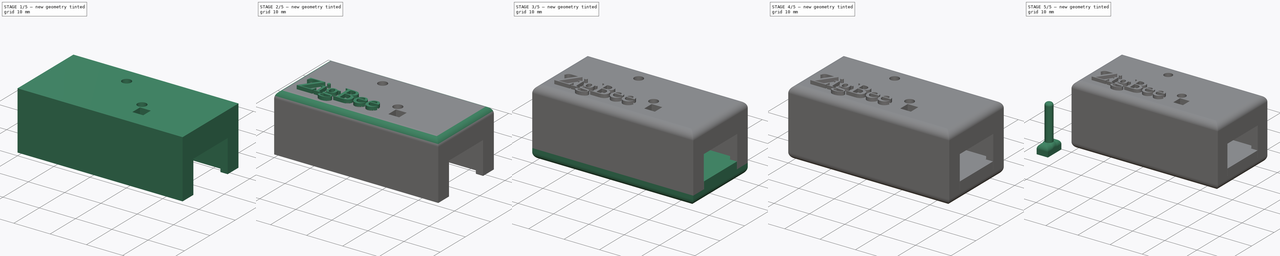
[diagram: build sequence overview — one tinted view per stage of 5, left to right]
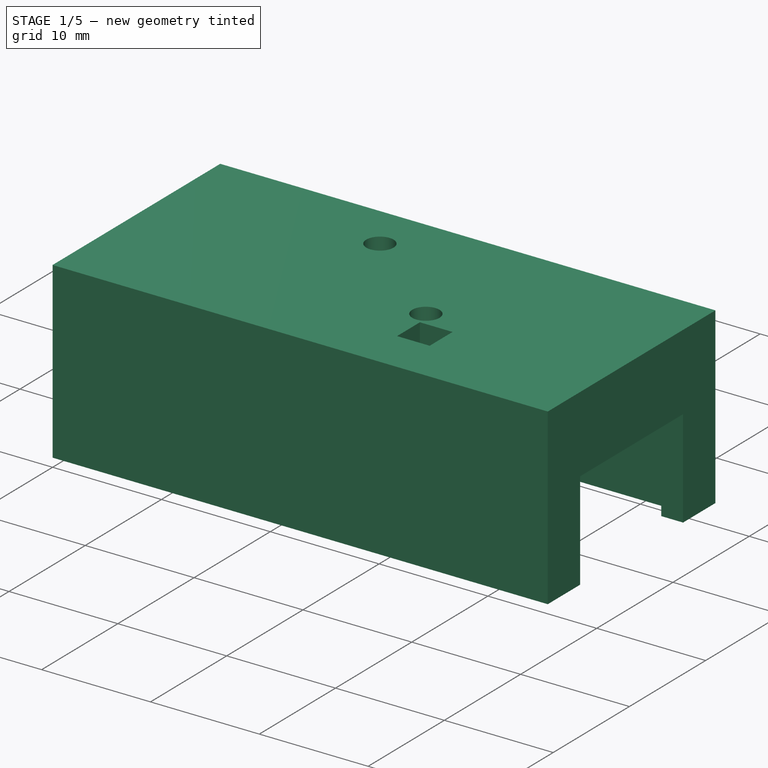
[diagram: stage 1 of 5 — iso view after this stage's code; geometry added in this stage tinted green]
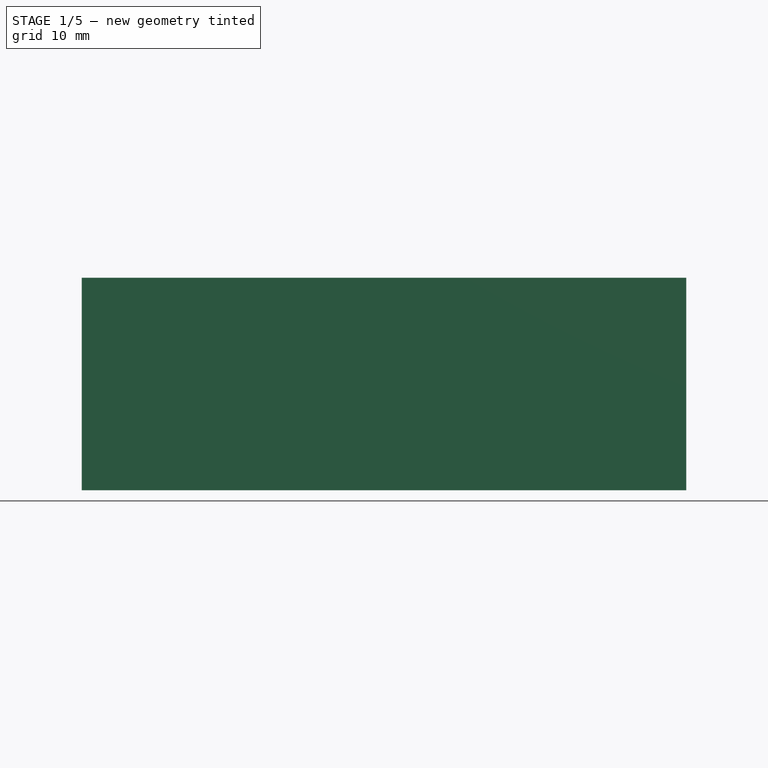
[diagram: stage 1 of 5 — front view after this stage's code; geometry added in this stage tinted green]
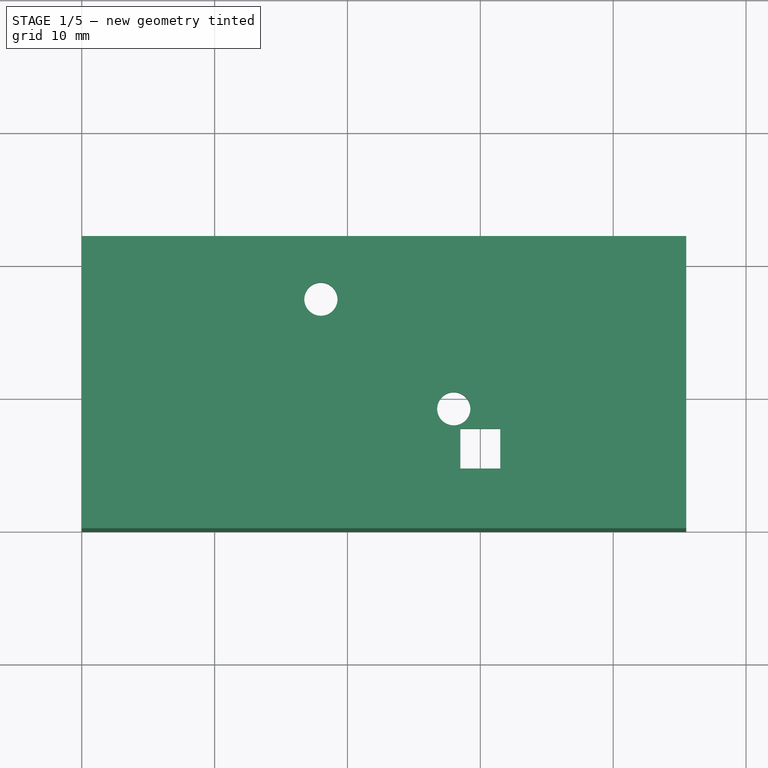
[diagram: stage 1 of 5 — top view after this stage's code; geometry added in this stage tinted green]
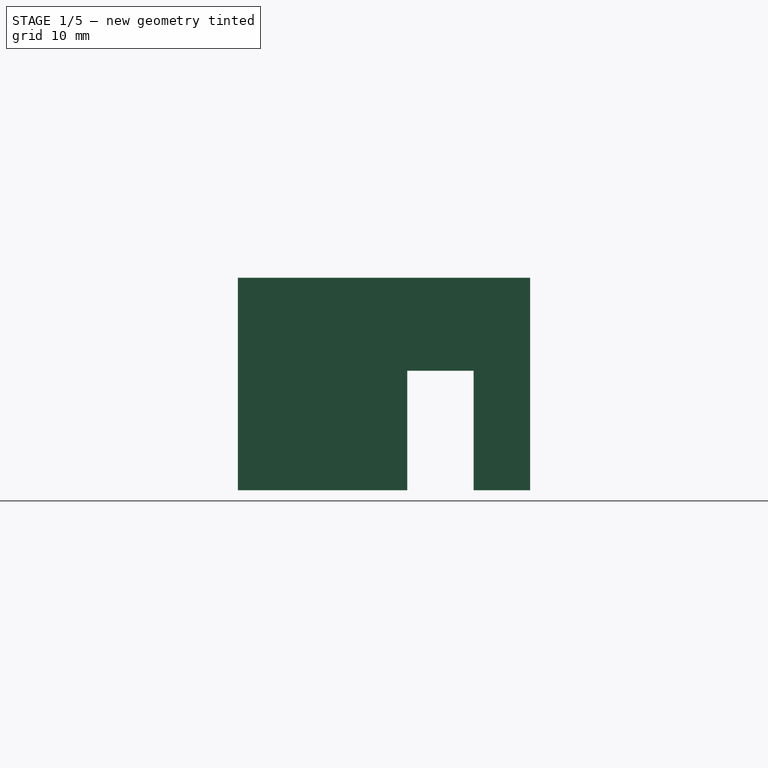
[diagram: stage 1 of 5 — right view after this stage's code; geometry added in this stage tinted green]
FCSTD DOCUMENT  (FreeCAD 0.18.4R)
Label: stick_case
License: All rights reserved
LicenseURL: http://en.wikipedia.org/wiki/All_rights_reserved
objects: Sketcher::SketchObject×12, PartDesign::Pad×7, PartDesign::Fillet×7, PartDesign::Pocket×5, PartDesign::Body×3, Part::Part2DObjectPython×1, Part::Extrusion×1, Part::MultiFuse×1
note: 49 computed .brp shape members not serialized (recipe doc carries the construction recipe); baked Part::Feature solids carry a one-line shape summary decoded from their .brp

FEATURE [Sketcher::SketchObject] Sketch
  MapMode = 5
  Support = -> [XY_Plane]
  sketch-geometry (4):
    g0: LineSegment StartX=0 StartY=0 StartZ=0 EndX=45.5 EndY=0 EndZ=0
    g1: LineSegment StartX=45.5 StartY=0 StartZ=0 EndX=45.5 EndY=22 EndZ=0
    g2: LineSegment StartX=45.5 StartY=22 StartZ=0 EndX=0 EndY=22 EndZ=0
    g3: LineSegment StartX=0 StartY=22 StartZ=0 EndX=0 EndY=0 EndZ=0
  constraints (11):
    c: Coincident(g0,g1)
    c: Coincident(g1,g2)
    c: Coincident(g2,g3)
    c: Coincident(g3,g0)
    c: Horizontal(g0)
    c: Horizontal(g2)
    c: Vertical(g1)
    c: Vertical(g3)
    c: Coincident(g0,g-1)
    c: DistanceY(g0,g2) = 22
    c: DistanceX(g2,g1) = 45.5
FEATURE [PartDesign::Pad] Pad
  Length = 16
  Length2 = 100
  Profile = -> Sketch
  Type = 0
FEATURE [Sketcher::SketchObject] Sketch001
  ExternalGeometry = -> [Pad]
  MapMode = 5
  Placement = pos=(0,0,0) rot=(1,0,0;3.14159rad)
  Support = -> [Pad]
  sketch-geometry (4):
    g0: LineSegment StartX=2 StartY=-2.75 StartZ=0 EndX=43.5 EndY=-2.75 EndZ=0
    g1: LineSegment StartX=43.5 StartY=-2.75 StartZ=0 EndX=43.5 EndY=-19.25 EndZ=0
    g2: LineSegment StartX=43.5 StartY=-19.25 StartZ=0 EndX=2 EndY=-19.25 EndZ=0
    g3: LineSegment StartX=2 StartY=-19.25 StartZ=0 EndX=2 EndY=-2.75 EndZ=0
  constraints (12):
    c: Coincident(g0,g1)
    c: Coincident(g1,g2)
    c: Coincident(g2,g3)
    c: Coincident(g3,g0)
    c: Horizontal(g0)
    c: Horizontal(g2)
    c: Vertical(g1)
    c: Vertical(g3)
    c: DistanceY(g0,g-1) = 2.75
    c: DistanceY(g1,g0) = 16.5
    c: DistanceX(g-3,g2) = 2
    c: DistanceX(g0,g0) = 41.5
FEATURE [PartDesign::Pocket] Pocket
  BaseFeature = -> Pad
  Length = 14
  Length2 = 100
  Profile = -> Sketch001
  Type = 0
FEATURE [Sketcher::SketchObject] Sketch002
  ExternalGeometry = -> [Pocket]
  MapMode = 5
  Placement = pos=(0,0,14) rot=(1,0,0;3.14159rad)
  Support = -> [Pocket]
  sketch-geometry (6):
    g0: Circle CenterX=18 CenterY=-17.25 CenterZ=0 NormalX=0 NormalY=0 NormalZ=1 AngleXU=0 Radius=1.25
    g1: Circle CenterX=28 CenterY=-9 CenterZ=0 NormalX=0 NormalY=0 NormalZ=1 AngleXU=0 Radius=1.25
    g2: LineSegment StartX=28.5 StartY=-4.5 StartZ=0 EndX=31.5 EndY=-4.5 EndZ=0
    g3: LineSegment StartX=31.5 StartY=-4.5 StartZ=0 EndX=31.5 EndY=-7.5 EndZ=0
    g4: LineSegment StartX=31.5 StartY=-7.5 StartZ=0 EndX=28.5 EndY=-7.5 EndZ=0
    g5: LineSegment StartX=28.5 StartY=-7.5 StartZ=0 EndX=28.5 EndY=-4.5 EndZ=0
  constraints (18):
    c: Diameter(g1) = 2.5
    c: Diameter(g0) = 2.5
    c: DistanceX(g-3,g0) = 16
    c: DistanceY(g-3,g0) = 2
    c: DistanceX(g-3,g1) = 26
    c: DistanceY(g-3,g1) = 10.25
    c: Coincident(g2,g3)
    c: Coincident(g3,g4)
    c: Coincident(g4,g5)
    c: Coincident(g5,g2)
    c: Horizontal(g2)
    c: Horizontal(g4)
    c: Vertical(g3)
    c: Vertical(g5)
    c: DistanceX(g4,g3) = 3
    c: DistanceY(g3,g2) = 3
    c: DistanceY(g1,g4) = 1.5
    c: DistanceX(g1,g4) = 0.5
FEATURE [PartDesign::Pocket] Pocket001
  BaseFeature = -> Pocket
  Length = 5
  Length2 = 100
  Profile = -> Sketch002
  Type = 1
FEATURE [Sketcher::SketchObject] Sketch003
  ExternalGeometry = -> [Pocket001]
  MapMode = 5
  Placement = pos=(0,0,0) rot=(1,0,0;3.14159rad)
  Support = -> [Pocket001]
  sketch-geometry (8):
    g0: LineSegment StartX=43.5 StartY=-4.25 StartZ=0 EndX=45.5 EndY=-4.25 EndZ=0
    g1: LineSegment StartX=45.5 StartY=-4.25 StartZ=0 EndX=45.5 EndY=-17.75 EndZ=0
    g2: LineSegment StartX=45.5 StartY=-17.75 StartZ=0 EndX=43.5 EndY=-17.75 EndZ=0
    g3: LineSegment StartX=43.5 StartY=-17.75 StartZ=0 EndX=43.5 EndY=-4.25 EndZ=0
    g4: LineSegment StartX=0 StartY=-12.75 StartZ=0 EndX=2 EndY=-12.75 EndZ=0
    g5: LineSegment StartX=2 StartY=-12.75 StartZ=0 EndX=2 EndY=-19.25 EndZ=0
    g6: LineSegment StartX=2 StartY=-19.25 StartZ=0 EndX=0 EndY=-19.25 EndZ=0
    g7: LineSegment StartX=0 StartY=-19.25 StartZ=0 EndX=0 EndY=-12.75 EndZ=0
  constraints (23):
    c: Coincident(g0,g1)
    c: Coincident(g1,g2)
    c: Coincident(g2,g3)
    c: Coincident(g3,g0)
    c: Horizontal(g0)
    c: Horizontal(g2)
    c: Vertical(g1)
    c: Vertical(g3)
    c: DistanceY(g-5,g2) = 1.5
    c: DistanceY(g0,g-5) = 1.5
    c: PointOnObject(g0,g-5)
    c: PointOnObject(g0,g-4)
    c: Coincident(g4,g5)
    c: Coincident(g5,g6)
    c: Coincident(g6,g7)
    c: Coincident(g7,g4)
    c: Horizontal(g4)
    c: Horizontal(g6)
    c: Vertical(g5)
    c: Vertical(g7)
    c: Coincident(g5,g-6)
    c: PointOnObject(g6,g-3)
    c: DistanceY(g6,g4) = 6.5
FEATURE [PartDesign::Pocket] Pocket002
  BaseFeature = -> Pocket001
  Length = 9
  Length2 = 100
  Profile = -> Sketch003
  Type = 0
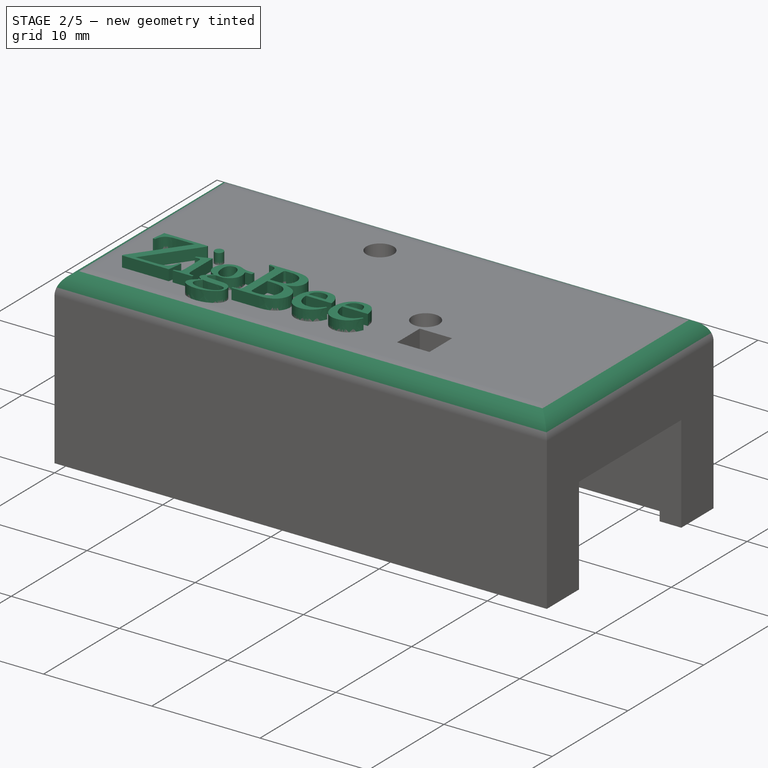
[diagram: stage 2 of 5 — iso view after this stage's code; geometry added in this stage tinted green]
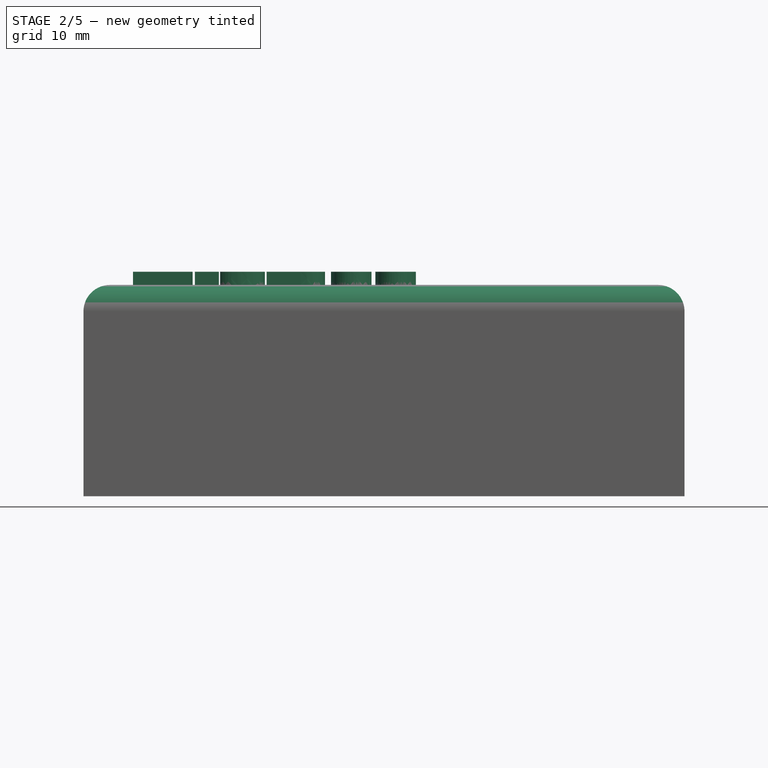
[diagram: stage 2 of 5 — front view after this stage's code; geometry added in this stage tinted green]
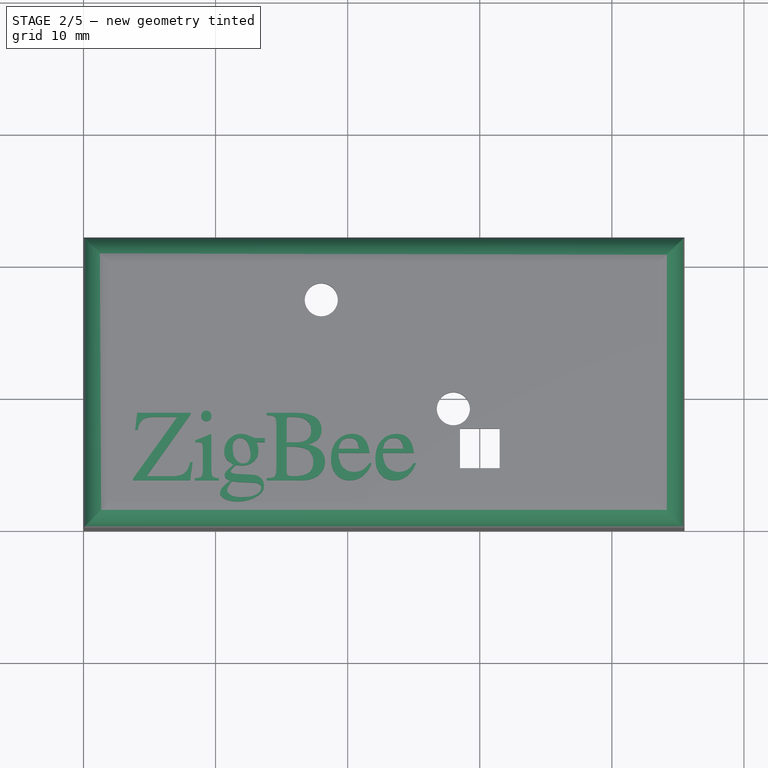
[diagram: stage 2 of 5 — top view after this stage's code; geometry added in this stage tinted green]
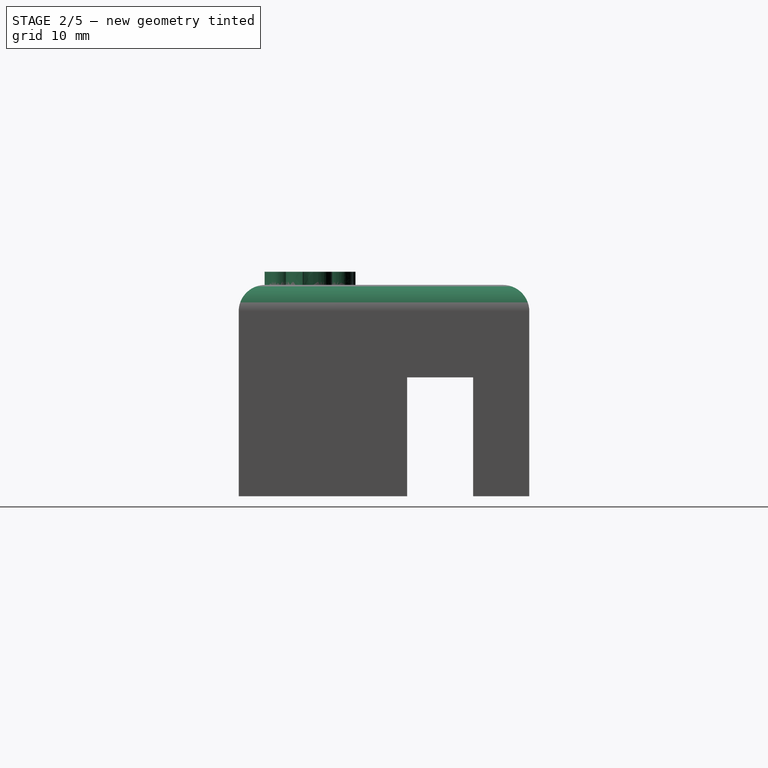
[diagram: stage 2 of 5 — right view after this stage's code; geometry added in this stage tinted green]
FEATURE [PartDesign::Fillet] Fillet
  Base = -> Pocket002 [Edge4,Edge18,Edge24,Edge10]
  BaseFeature = -> Pocket002
  Radius = 2
FEATURE [PartDesign::Body] Body002  label="ButtonBody"
  Group = -> [Sketch006,Pad003,Sketch007,Pad004,Fillet002,Fillet003]
  Origin = -> Origin002
  Tip = -> Fillet003
FEATURE [Part::Part2DObjectPython] ShapeString  # Draft 2D object (typed FeaturePython)
  FontFile = <path>
  Placement = pos=(-18.58,-28.72,0) rot=(0,0,1;0rad)
  Size = 3
  String = ZigBee
  Tracking = 0
FEATURE [Part::Extrusion] Extrude
  Base = -> ShapeString
  Dir = (0,0,1)
  DirMode = 2
  FaceMakerClass = Part::FaceMakerBullseye
  LengthFwd = 1
  LengthRev = 0
  Placement = pos=(22.2462,32.2786,16) rot=(0,0,1;0rad)
  Solid = false
  Symmetric = false
FEATURE [PartDesign::Body] Body001  label="CoverBody"
  Group = -> [Sketch004,Pad001,Sketch005,Pad002,Fillet001,Sketch008,Pad005,Fillet004,Fillet005,Sketch009,Pad006,Fillet006]
  Origin = -> Origin001
  Tip = -> Fillet006
FEATURE [Sketcher::SketchObject] Sketch010
  ExternalGeometry = -> [Fillet]
  MapMode = 5
  Placement = pos=(0,2.75,0) rot=(0,0.707107,0.707107;3.14159rad)
  Support = -> [Fillet]
  sketch-geometry (8):
    g0: LineSegment StartX=-33.3 StartY=2.1 StartZ=0 EndX=-40.5 EndY=2.1 EndZ=0
    g1: LineSegment StartX=-40.5 StartY=2.1 StartZ=0 EndX=-40.5 EndY=0.9 EndZ=0
    g2: LineSegment StartX=-40.5 StartY=0.9 StartZ=0 EndX=-33.3 EndY=0.9 EndZ=0
    g3: LineSegment StartX=-33.3 StartY=0.9 StartZ=0 EndX=-33.3 EndY=2.1 EndZ=0
    g4: LineSegment StartX=-12.2 StartY=2.1 StartZ=0 EndX=-5 EndY=2.1 EndZ=0
    g5: LineSegment StartX=-5 StartY=2.1 StartZ=0 EndX=-5 EndY=0.9 EndZ=0
    g6: LineSegment StartX=-5 StartY=0.9 StartZ=0 EndX=-12.2 EndY=0.9 EndZ=0
    g7: LineSegment StartX=-12.2 StartY=0.9 StartZ=0 EndX=-12.2 EndY=2.1 EndZ=0
  constraints (24):
    c: Coincident(g0,g1)
    c: Coincident(g1,g2)
    c: Coincident(g2,g3)
    c: Coincident(g3,g0)
    c: Horizontal(g0)
    c: Horizontal(g2)
    c: Vertical(g1)
    c: Vertical(g3)
    c: DistanceY(g-4,g1) = 0.9
    c: DistanceX(g-4,g1) = 3
    c: DistanceX(g1,g2) = 7.2
    c: DistanceY(g1,g0) = 1.2
    c: Coincident(g4,g5)
    c: Coincident(g5,g6)
    c: Coincident(g6,g7)
    c: Coincident(g7,g4)
    c: Horizontal(g4)
    c: Horizontal(g6)
    c: Vertical(g5)
    c: Vertical(g7)
    c: DistanceX(g5,g-1) = 5
    c: DistanceY(g-1,g5) = 0.9
    c: DistanceX(g6,g5) = 7.2
    c: DistanceY(g5,g4) = 1.2
FEATURE [PartDesign::Pocket] Pocket003
  BaseFeature = -> Fillet
  Length = 1.5
  Length2 = 100
  Profile = -> Sketch010
  Type = 0
FEATURE [Sketcher::SketchObject] Sketch011
  ExternalGeometry = -> [Pocket003]
  MapMode = 5
  Placement = pos=(0,19.25,0) rot=(1,0,0;1.5708rad)
  Support = -> [Pocket003]
  sketch-geometry (4):
    g0: LineSegment StartX=19.15 StartY=2.1 StartZ=0 EndX=26.35 EndY=2.1 EndZ=0
    g1: LineSegment StartX=26.35 StartY=2.1 StartZ=0 EndX=26.35 EndY=0.9 EndZ=0
    g2: LineSegment StartX=26.35 StartY=0.9 StartZ=0 EndX=19.15 EndY=0.9 EndZ=0
    g3: LineSegment StartX=19.15 StartY=0.9 StartZ=0 EndX=19.15 EndY=2.1 EndZ=0
  constraints (12):
    c: Coincident(g0,g1)
    c: Coincident(g1,g2)
    c: Coincident(g2,g3)
    c: Coincident(g3,g0)
    c: Horizontal(g0)
    c: Horizontal(g2)
    c: Vertical(g1)
    c: Vertical(g3)
    c: DistanceX(g-1,g2) = 19.15
    c: DistanceX(g0,g0) = 7.2
    c: DistanceY(g2,g0) = 1.2
    c: DistanceY(g-1,g2) = 0.9
FEATURE [PartDesign::Pocket] Pocket004
  BaseFeature = -> Pocket003
  Length = 1.5
  Length2 = 100
  Profile = -> Sketch011
  Type = 0
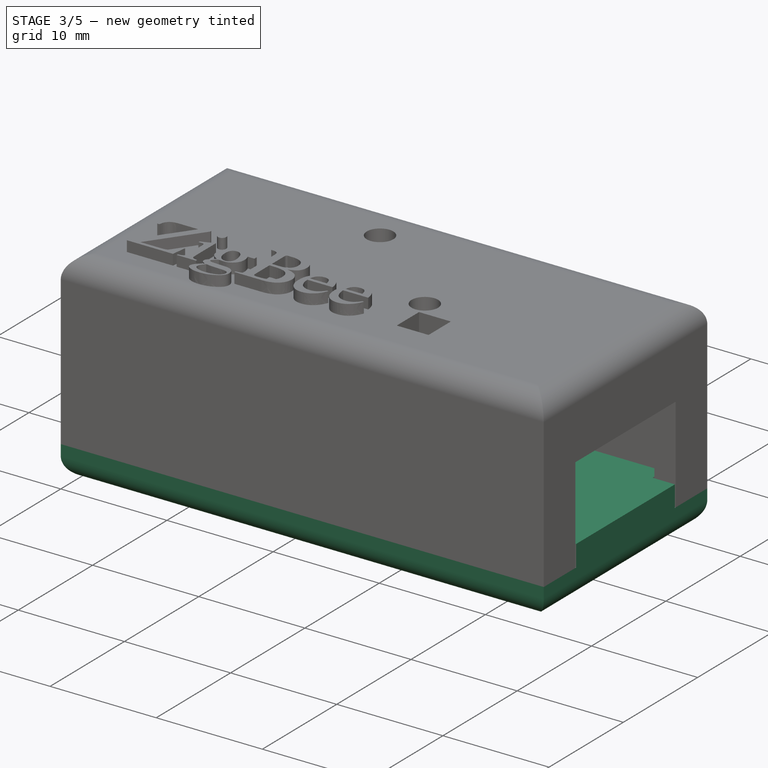
[diagram: stage 3 of 5 — iso view after this stage's code; geometry added in this stage tinted green]
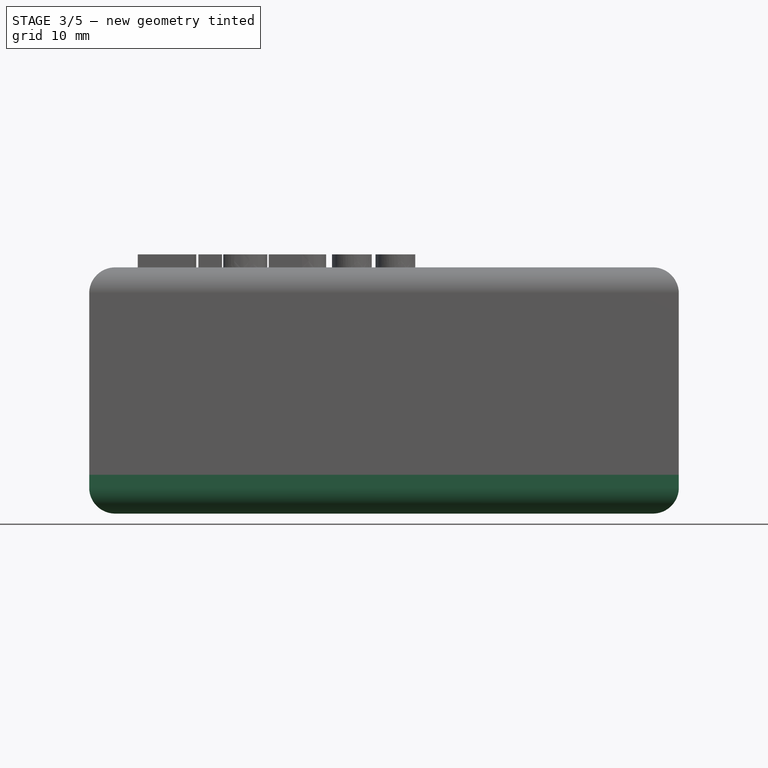
[diagram: stage 3 of 5 — front view after this stage's code; geometry added in this stage tinted green]
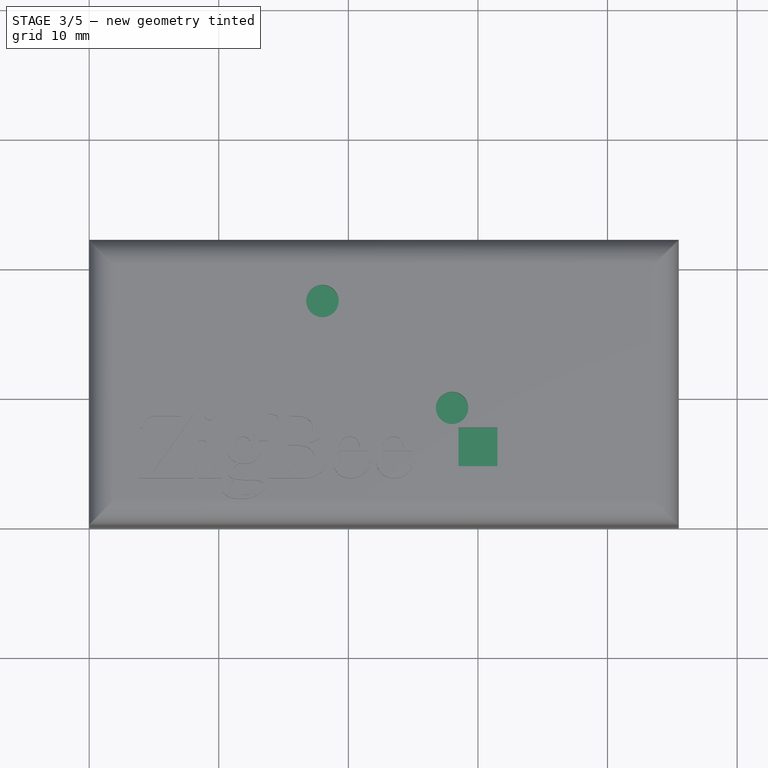
[diagram: stage 3 of 5 — top view after this stage's code; geometry added in this stage tinted green]
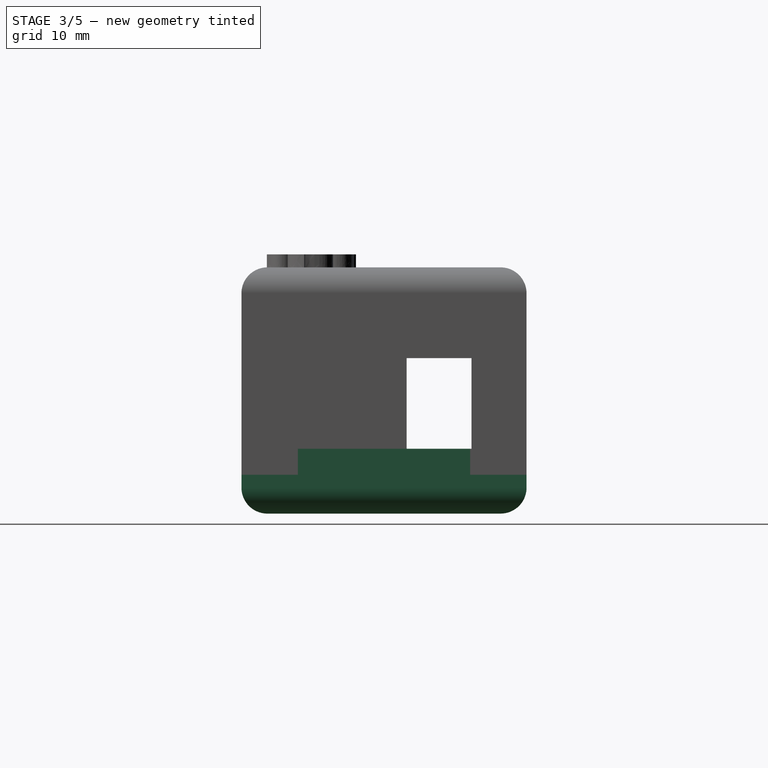
[diagram: stage 3 of 5 — right view after this stage's code; geometry added in this stage tinted green]
FEATURE [Sketcher::SketchObject] Sketch004
  MapMode = 5
  Support = -> [XY_Plane001]
  sketch-geometry (4):
    g0: LineSegment StartX=0 StartY=22 StartZ=0 EndX=45.5 EndY=22 EndZ=0
    g1: LineSegment StartX=45.5 StartY=22 StartZ=0 EndX=45.5 EndY=0 EndZ=0
    g2: LineSegment StartX=45.5 StartY=0 StartZ=0 EndX=0 EndY=0 EndZ=0
    g3: LineSegment StartX=0 StartY=0 StartZ=0 EndX=0 EndY=22 EndZ=0
  constraints (11):
    c: Coincident(g0,g1)
    c: Coincident(g1,g2)
    c: Coincident(g2,g3)
    c: Coincident(g3,g0)
    c: Horizontal(g0)
    c: Horizontal(g2)
    c: Vertical(g1)
    c: Vertical(g3)
    c: Coincident(g2,g-1)
    c: DistanceY(g2,g0) = 22
    c: DistanceX(g0,g0) = 45.5
FEATURE [PartDesign::Pad] Pad001
  Length = 3
  Length2 = 100
  Profile = -> Sketch004
  Reversed = true
  Type = 0
FEATURE [Sketcher::SketchObject] Sketch005
  MapMode = 5
  Support = -> [Pad001]
  sketch-geometry (10):
    g0: LineSegment StartX=0 StartY=19.15 StartZ=0 EndX=43.4 EndY=19.15 EndZ=0
    g1: LineSegment StartX=43.4 StartY=2.85 StartZ=0 EndX=2.1 EndY=2.85 EndZ=0
    g2: LineSegment StartX=43.4 StartY=2.85 StartZ=0 EndX=43.4 EndY=4.35 EndZ=0
    g3: LineSegment StartX=43.4 StartY=4.35 StartZ=0 EndX=45.5 EndY=4.35 EndZ=0
    g4: LineSegment StartX=45.5 StartY=4.35 StartZ=0 EndX=45.5 EndY=17.65 EndZ=0
    g5: LineSegment StartX=43.4 StartY=17.65 StartZ=0 EndX=43.4 EndY=19.15 EndZ=0
    g6: LineSegment StartX=43.4 StartY=17.65 StartZ=0 EndX=45.5 EndY=17.65 EndZ=0
    g7: LineSegment StartX=2.1 StartY=2.85 StartZ=0 EndX=2.1 EndY=12.85 EndZ=0
    g8: LineSegment StartX=2.1 StartY=12.85 StartZ=0 EndX=0 EndY=12.85 EndZ=0
    g9: LineSegment StartX=0 StartY=12.85 StartZ=0 EndX=0 EndY=19.15 EndZ=0
  constraints (30):
    c: Horizontal(g0)
    c: Horizontal(g1)
    c: DistanceY(g-1,g1) = 2.85
    c: DistanceY(g1,g0) = 16.3
    c: Coincident(g2,g3)
    c: Coincident(g3,g4)
    c: Coincident(g5,g0)
    c: Vertical(g5)
    c: Vertical(g4)
    c: Coincident(g2,g1)
    c: Vertical(g2)
    c: Equal(g2,g5)
    c: Horizontal(g3)
    c: DistanceY(g1,g2) = 1.5
    c: DistanceX(g2,g3) = 2.1
    c: Horizontal(g6)
    c: Coincident(g4,g6)
    c: Coincident(g6,g5)
    c: DistanceX(g-1,g1) = 2.1
    c: PointOnObject(g0,g-2)
    c: DistanceX(g0,g0) = 43.4
    c: Coincident(g7,g8)
    c: Coincident(g8,g9)
    c: Coincident(g9,g0)
    c: Vertical(g9)
    c: Horizontal(g8)
    c: Vertical(g7)
    c: DistanceY(g8,g0) = 6.3
    c: DistanceX(g7,g1) = 41.3
    c: Coincident(g7,g1)
FEATURE [PartDesign::Pad] Pad002
  BaseFeature = -> Pad001
  Length = 2
  Length2 = 100
  Profile = -> Sketch005
  Type = 0
FEATURE [PartDesign::Fillet] Fillet001
  Base = -> Pad002 [Face5]
  BaseFeature = -> Pad002
  Radius = 2
FEATURE [Sketcher::SketchObject] Sketch008
  ExternalGeometry = -> [Fillet001]
  MapMode = 5
  Placement = pos=(0,2.85,0) rot=(1,0,0;1.5708rad)
  Support = -> [Fillet001]
  sketch-geometry (8):
    g0: LineSegment StartX=5.1 StartY=2 StartZ=0 EndX=12.1 EndY=2 EndZ=0
    g1: LineSegment StartX=12.1 StartY=2 StartZ=0 EndX=12.1 EndY=1 EndZ=0
    g2: LineSegment StartX=12.1 StartY=1 StartZ=0 EndX=5.1 EndY=1 EndZ=0
    g3: LineSegment StartX=5.1 StartY=1 StartZ=0 EndX=5.1 EndY=2 EndZ=0
    g4: LineSegment StartX=33.4 StartY=2 StartZ=0 EndX=40.4 EndY=2 EndZ=0
    g5: LineSegment StartX=40.4 StartY=2 StartZ=0 EndX=40.4 EndY=1 EndZ=0
    g6: LineSegment StartX=40.4 StartY=1 StartZ=0 EndX=33.4 EndY=1 EndZ=0
    g7: LineSegment StartX=33.4 StartY=1 StartZ=0 EndX=33.4 EndY=2 EndZ=0
  constraints (24):
    c: Coincident(g0,g1)
    c: Coincident(g1,g2)
    c: Coincident(g2,g3)
    c: Coincident(g3,g0)
    c: Horizontal(g0)
    c: Horizontal(g2)
    c: Vertical(g1)
    c: Vertical(g3)
    c: Coincident(g4,g5)
    c: Coincident(g5,g6)
    c: Coincident(g6,g7)
    c: Coincident(g7,g4)
    c: Horizontal(g4)
    c: Horizontal(g6)
    c: Vertical(g5)
    c: Vertical(g7)
    c: DistanceX(g-4,g0) = 3
    c: PointOnObject(g0,g-4)
    c: DistanceX(g0,g0) = 7
    c: DistanceY(g2,g0) = 1
    c: DistanceX(g4,g-5) = 3
    c: DistanceY(g5,g4) = 1
    c: DistanceX(g4,g4) = 7
    c: PointOnObject(g4,g-4)
FEATURE [PartDesign::Pad] Pad005
  BaseFeature = -> Fillet001
  Length = 1
  Length2 = 100
  Profile = -> Sketch008
  Type = 0
FEATURE [PartDesign::Body] Body  label="CaseBody"
  Group = -> [Sketch,Pad,Sketch001,Pocket,Sketch002,Pocket001,Sketch003,Pocket002,Fillet,Sketch010,Pocket003,Sketch011,Pocket004]
  Origin = -> Origin
  Tip = -> Pocket004
FEATURE [Part::MultiFuse] Fusion
  Shapes = -> [Body,Extrude]
note: 1 file-system path scrubbed to <path> (originals preserved in the JSON sidecar)
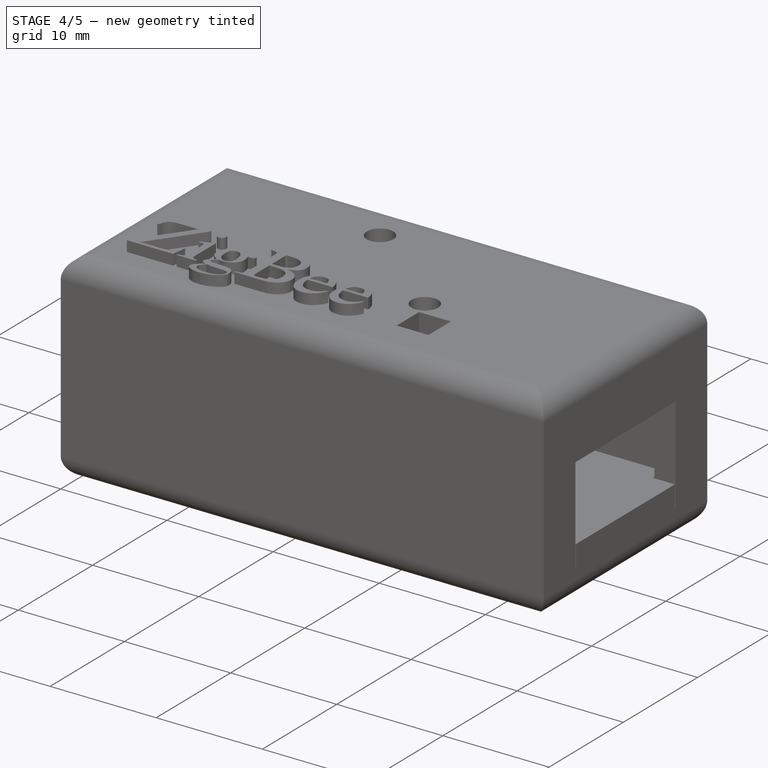
[diagram: stage 4 of 5 — iso view after this stage's code; geometry added in this stage tinted green]
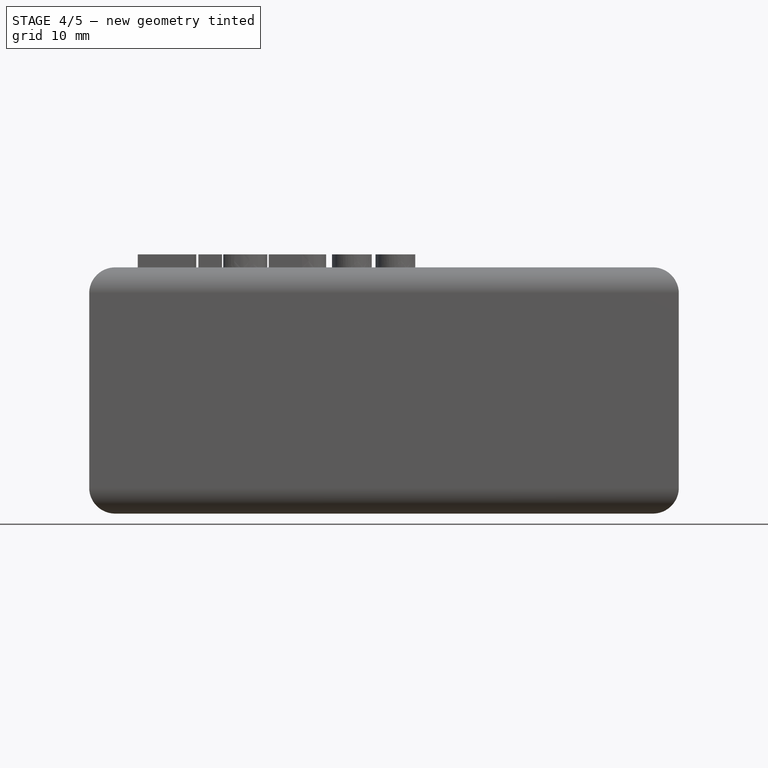
[diagram: stage 4 of 5 — front view after this stage's code; geometry added in this stage tinted green]
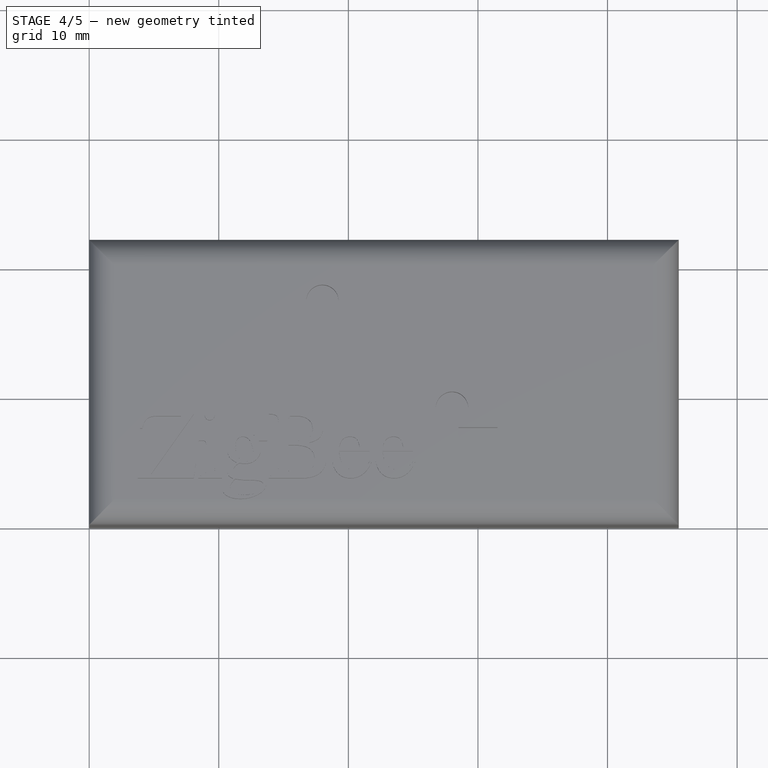
[diagram: stage 4 of 5 — top view after this stage's code; geometry added in this stage tinted green]
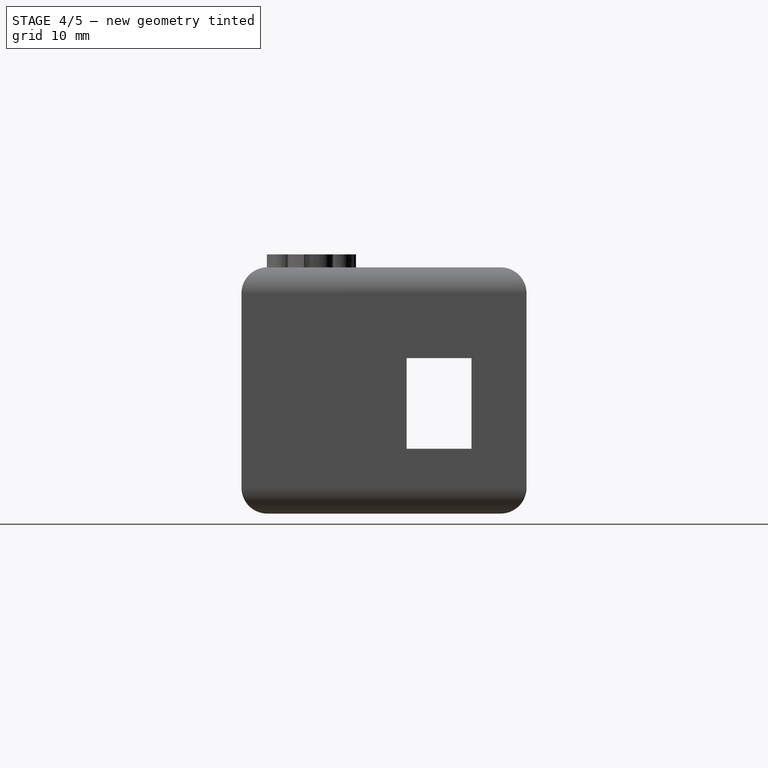
[diagram: stage 4 of 5 — right view after this stage's code; geometry added in this stage tinted green]
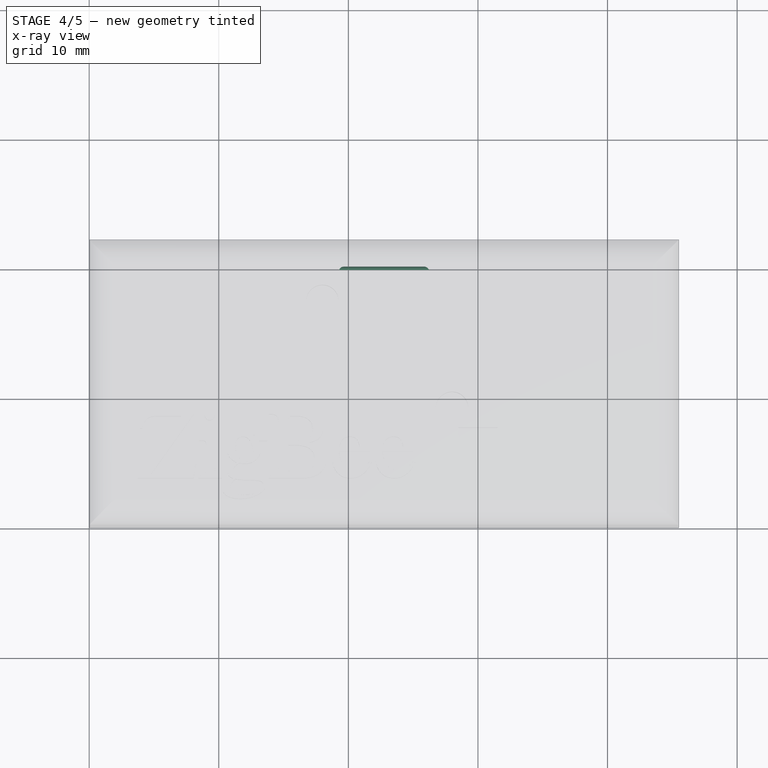
[diagram: stage 4 of 5 — x-ray composite at the top view; earlier geometry ghosted, this stage's added geometry solid]
FEATURE [PartDesign::Fillet] Fillet004
  Base = -> Pad005 [Face32]
  BaseFeature = -> Pad005
  Radius = 0.4
FEATURE [PartDesign::Fillet] Fillet005
  Base = -> Fillet004 [Face29]
  BaseFeature = -> Fillet004
  Radius = 0.4
FEATURE [Sketcher::SketchObject] Sketch009
  ExternalGeometry = -> [Fillet005]
  MapMode = 5
  Placement = pos=(0,19.15,0) rot=(0,0.707107,0.707107;3.14159rad)
  Support = -> [Fillet005]
  sketch-geometry (4):
    g0: LineSegment StartX=-26.25 StartY=2 StartZ=0 EndX=-19.25 EndY=2 EndZ=0
    g1: LineSegment StartX=-19.25 StartY=2 StartZ=0 EndX=-19.25 EndY=1 EndZ=0
    g2: LineSegment StartX=-19.25 StartY=1 StartZ=0 EndX=-26.25 EndY=1 EndZ=0
    g3: LineSegment StartX=-26.25 StartY=1 StartZ=0 EndX=-26.25 EndY=2 EndZ=0
  constraints (12):
    c: Coincident(g0,g1)
    c: Coincident(g1,g2)
    c: Coincident(g2,g3)
    c: Coincident(g3,g0)
    c: Horizontal(g0)
    c: Horizontal(g2)
    c: Vertical(g1)
    c: Vertical(g3)
    c: DistanceX(g0,g0) = 7
    c: PointOnObject(g0,g-3)
    c: DistanceY(g1,g0) = 1
    c: DistanceX(g0,g-3) = 19.25
FEATURE [PartDesign::Pad] Pad006
  BaseFeature = -> Fillet005
  Length = 1
  Length2 = 100
  Profile = -> Sketch009
  Type = 0
FEATURE [PartDesign::Fillet] Fillet006
  Base = -> Pad006 [Face42]
  BaseFeature = -> Pad006
  Radius = 0.4
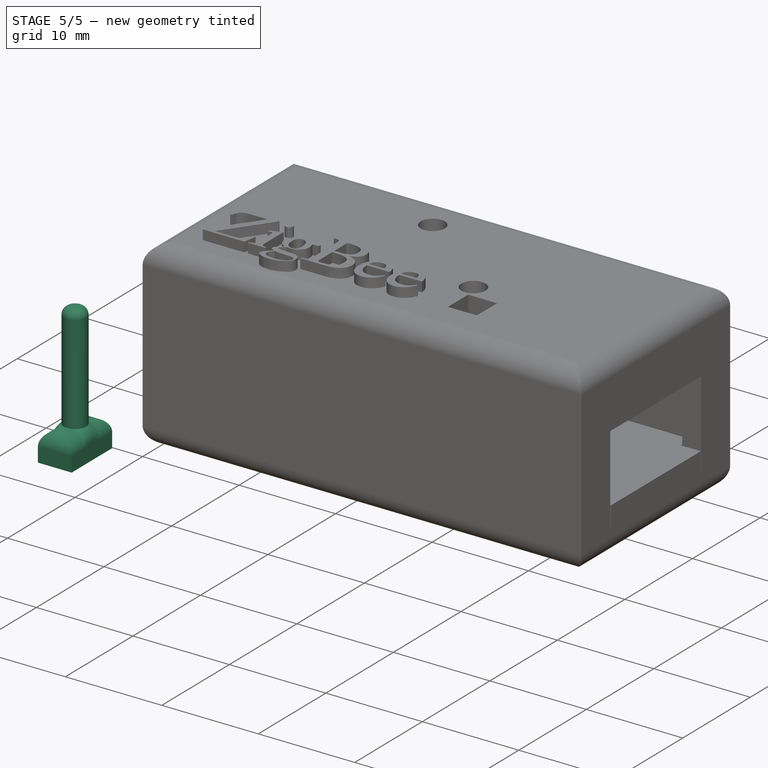
[diagram: stage 5 of 5 — iso view after this stage's code; geometry added in this stage tinted green]
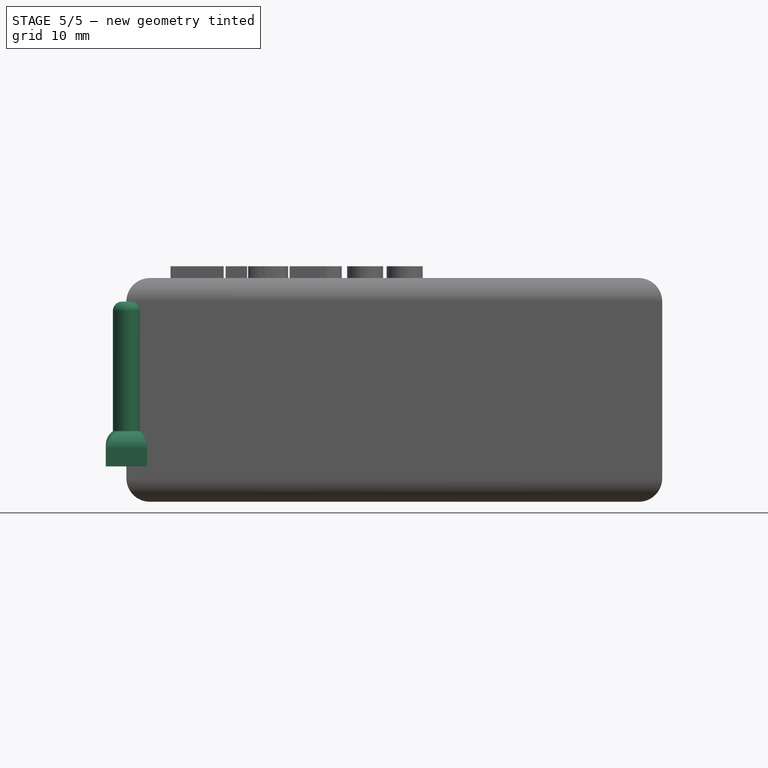
[diagram: stage 5 of 5 — front view after this stage's code; geometry added in this stage tinted green]
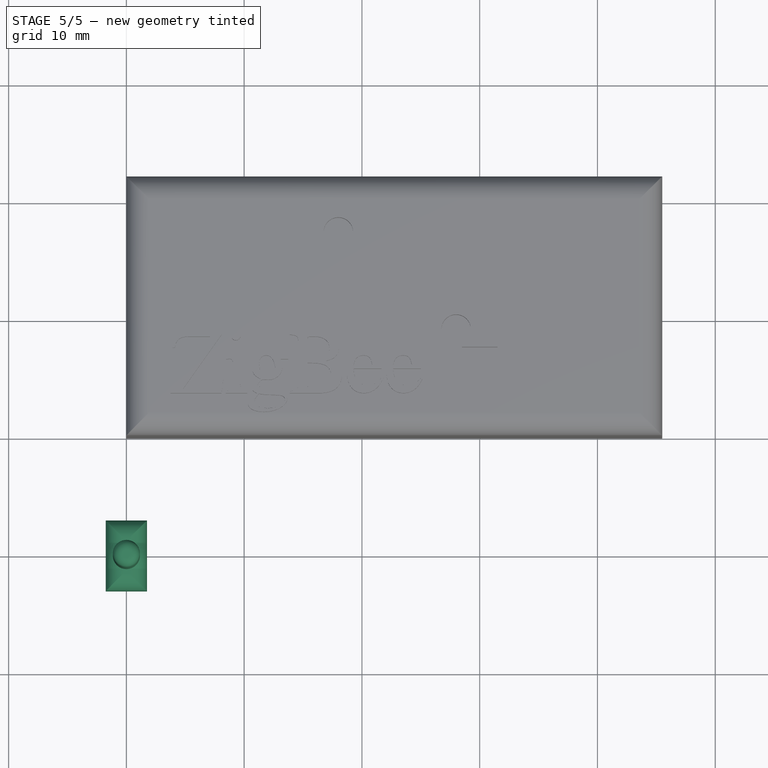
[diagram: stage 5 of 5 — top view after this stage's code; geometry added in this stage tinted green]
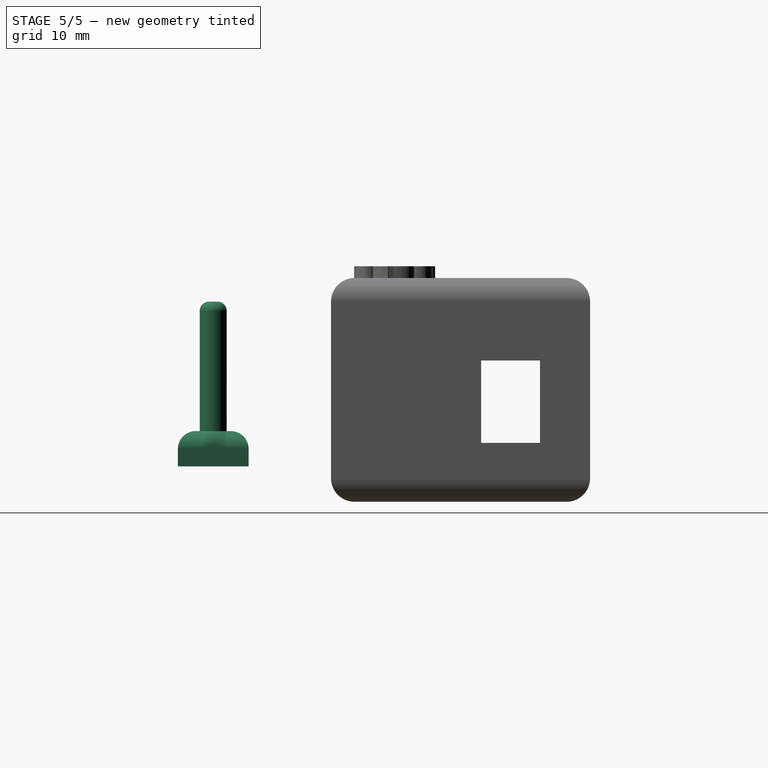
[diagram: stage 5 of 5 — right view after this stage's code; geometry added in this stage tinted green]
FEATURE [Sketcher::SketchObject] Sketch006
  MapMode = 5
  Support = -> [XY_Plane002]
  sketch-geometry (1):
    g0: Circle CenterX=0 CenterY=-10 CenterZ=0 NormalX=0 NormalY=0 NormalZ=1 AngleXU=0 Radius=1.15
  constraints (3):
    c: Diameter(g0) = 2.3
    c: PointOnObject(g0,g-2)
    c: DistanceY(g0,g-1) = 10
FEATURE [PartDesign::Pad] Pad003
  Length = 14
  Length2 = 100
  Profile = -> Sketch006
  Type = 0
FEATURE [Sketcher::SketchObject] Sketch007
  MapMode = 5
  Placement = pos=(0,0,0) rot=(1,0,0;3.14159rad)
  Support = -> [Pad003]
  sketch-geometry (4):
    g0: LineSegment StartX=1.75 StartY=7 StartZ=0 EndX=-1.75 EndY=7 EndZ=0
    g1: LineSegment StartX=-1.75 StartY=7 StartZ=0 EndX=-1.75 EndY=13 EndZ=0
    g2: LineSegment StartX=-1.75 StartY=13 StartZ=0 EndX=1.75 EndY=13 EndZ=0
    g3: LineSegment StartX=1.75 StartY=13 StartZ=0 EndX=1.75 EndY=7 EndZ=0
  constraints (11):
    c: Coincident(g0,g1)
    c: Coincident(g1,g2)
    c: Coincident(g2,g3)
    c: Coincident(g3,g0)
    c: Horizontal(g2)
    c: Vertical(g1)
    c: Vertical(g3)
    c: Symmetric(g0,g0,g-2)
    c: DistanceX(g0,g0) = 3.5
    c: DistanceY(g0,g1) = 6
    c: DistanceY(g-1,g0) = 7
FEATURE [PartDesign::Pad] Pad004
  BaseFeature = -> Pad003
  Length = 3
  Length2 = 100
  Profile = -> Sketch007
  Reversed = true
  Type = 0
FEATURE [PartDesign::Fillet] Fillet002
  Base = -> Pad004 [Edge10,Edge8,Edge12,Edge13]
  BaseFeature = -> Pad004
  Radius = 1.5
FEATURE [PartDesign::Fillet] Fillet003
  Base = -> Fillet002 [Edge40]
  BaseFeature = -> Fillet002
  Radius = 0.8
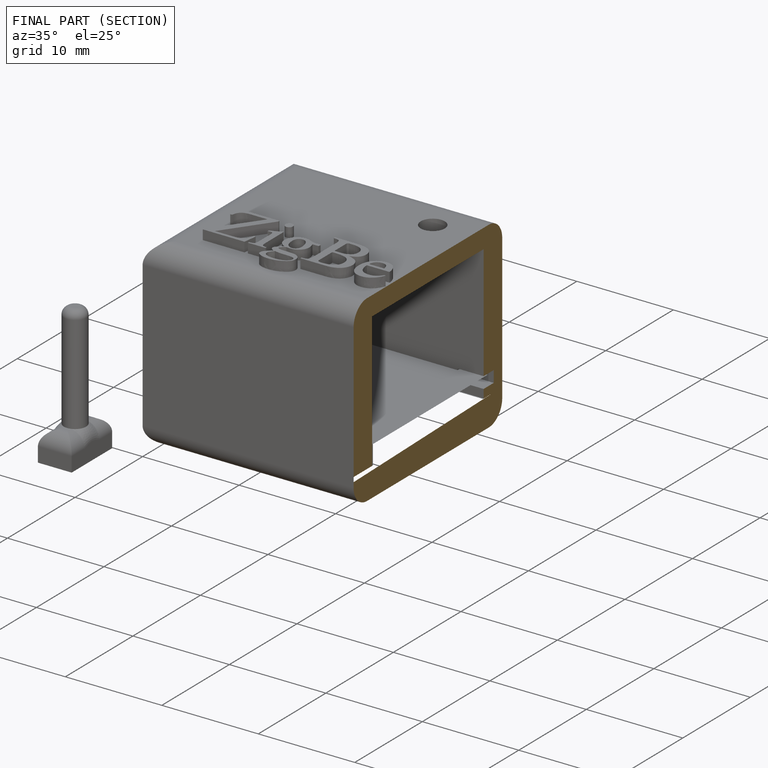
[diagram: finished part — half-section view (interior)]
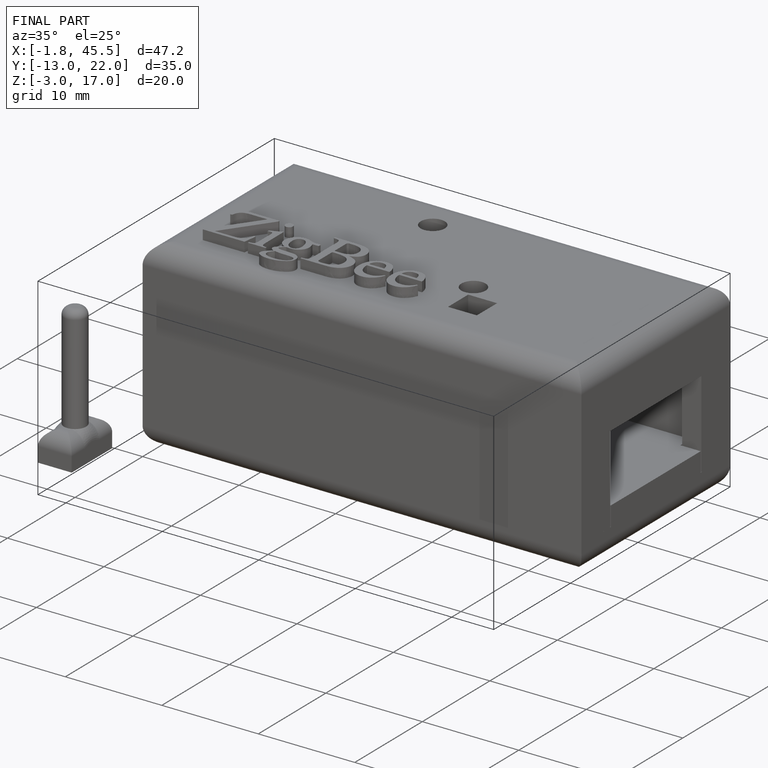
[diagram: finished part — iso view with bounding-box wireframe]
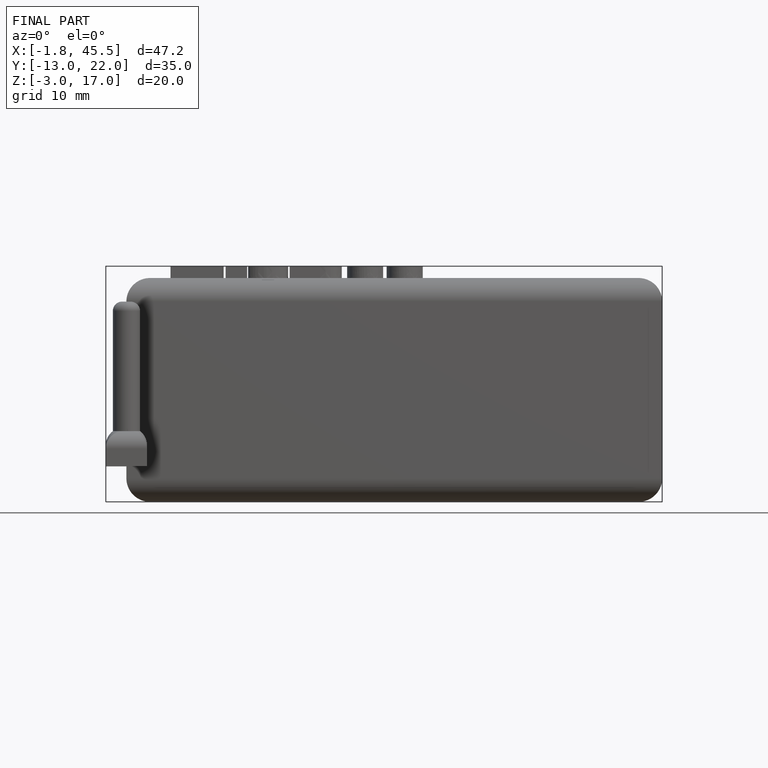
[diagram: finished part — front view with bounding-box wireframe]
